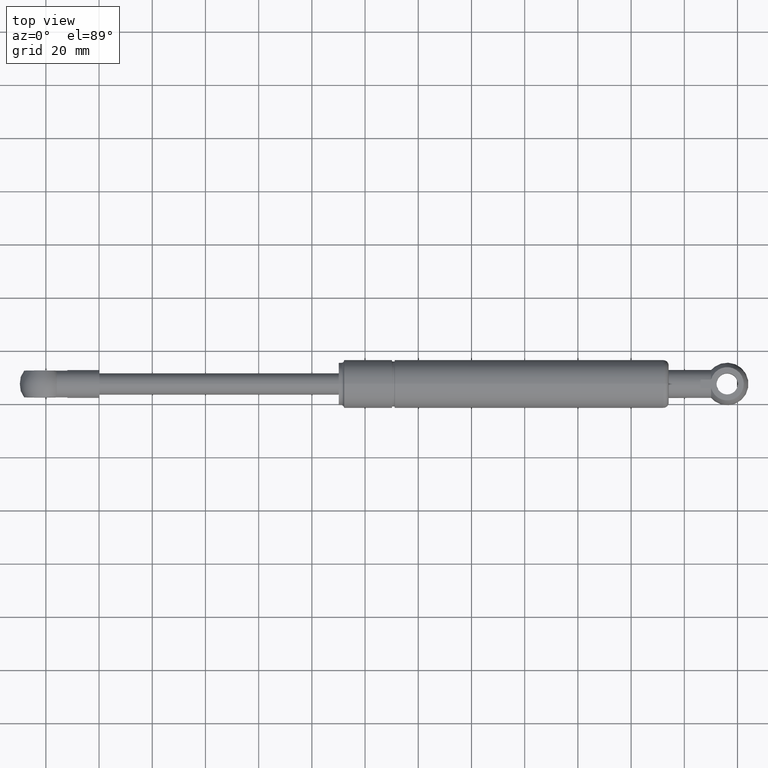
[diagram: clean part render]
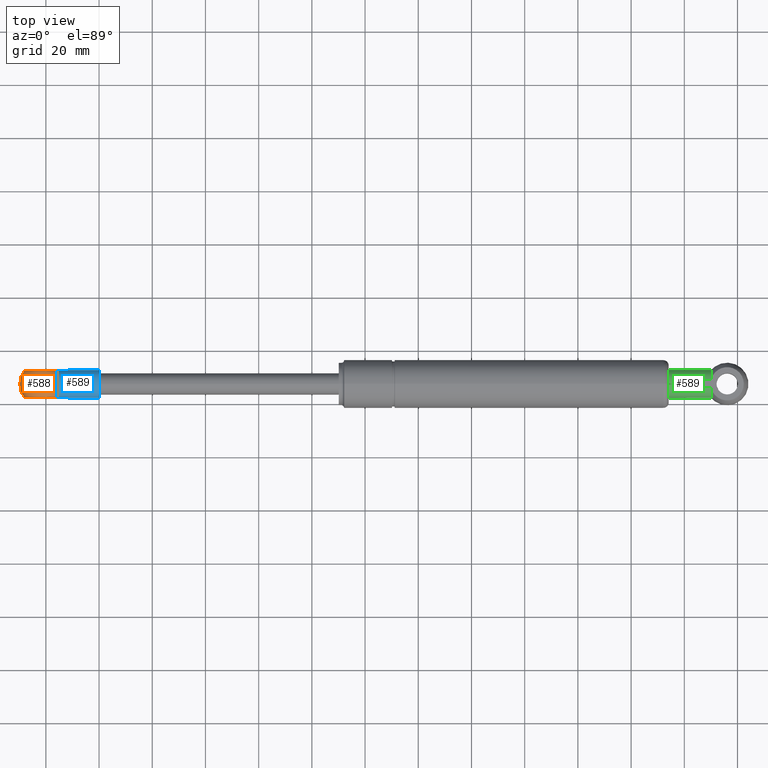
[diagram: same view with three faces highlighted in distinct colors, each labeled with its STEP entity id]
A machine part, top view with three faces highlighted in distinct colors.
Their STEP definitions:

[orange] entity #588 — the highlighted spherical surface has radius 8 mm.
#31=SPHERICAL_SURFACE('',#681,8.);
#162=FACE_OUTER_BOUND('',#243,.T.);
#243=EDGE_LOOP('',(#472,#473,#474,#475));
#283=CIRCLE('',#674,6.2449979983984);
#285=CIRCLE('',#678,6.2449979983984);
#287=CIRCLE('',#682,5.25);
#288=CIRCLE('',#683,5.25);
#328=VERTEX_POINT('',#1044);
#330=VERTEX_POINT('',#1048);
#332=VERTEX_POINT('',#1055);
#334=VERTEX_POINT('',#1059);
#376=EDGE_CURVE('',#328,#330,#283,.T.);
#381=EDGE_CURVE('',#332,#334,#285,.T.);
#383=EDGE_CURVE('',#330,#332,#287,.T.);
#384=EDGE_CURVE('',#334,#328,#288,.T.);
#472=ORIENTED_EDGE('',*,*,#376,.T.);
#473=ORIENTED_EDGE('',*,*,#383,.T.);
#474=ORIENTED_EDGE('',*,*,#381,.T.);
#475=ORIENTED_EDGE('',*,*,#384,.T.);
#588=ADVANCED_FACE('',(#162),#31,.T.);
#674=AXIS2_PLACEMENT_3D('',#1050,#854,#855);
#678=AXIS2_PLACEMENT_3D('',#1061,#865,#866);
#681=AXIS2_PLACEMENT_3D('',#1064,#871,#872);
#682=AXIS2_PLACEMENT_3D('',#1065,#873,#874);
#683=AXIS2_PLACEMENT_3D('',#1066,#875,#876);
#854=DIRECTION('center_axis',(0.,0.,-1.));
#855=DIRECTION('ref_axis',(0.,-1.,0.));
#865=DIRECTION('center_axis',(-1.0285227879424E-16,-1.26876631169479E-32,
1.));
#866=DIRECTION('ref_axis',(0.,1.,1.26876631169479E-32));
#871=DIRECTION('center_axis',(6.12323399573676E-17,0.,1.));
#872=DIRECTION('ref_axis',(1.,0.,0.));
#873=DIRECTION('center_axis',(-1.22464679914735E-16,1.,0.));
#874=DIRECTION('ref_axis',(1.,0.,0.));
#875=DIRECTION('center_axis',(-1.22464679914735E-16,1.,0.));
#876=DIRECTION('ref_axis',(1.,0.,0.));
#1044=CARTESIAN_POINT('',(-1.60078105935822,15.9636517661752,5.));
#1048=CARTESIAN_POINT('',(1.60078105935822,15.9636517661752,5.));
#1050=CARTESIAN_POINT('Origin',(-2.22044604925031E-15,22.,5.));
#1055=CARTESIAN_POINT('',(1.60078105935822,15.9636517661752,-5.));
#1059=CARTESIAN_POINT('',(-1.60078105935822,15.9636517661752,-5.));
#1061=CARTESIAN_POINT('Origin',(-1.70618465527911E-15,22.,-5.));
#1064=CARTESIAN_POINT('Origin',(-2.22044604925031E-15,22.,0.));
#1065=CARTESIAN_POINT('Origin',(-1.95498350381494E-15,15.9636517661752,
0.));
#1066=CARTESIAN_POINT('Origin',(-1.95498350381494E-15,15.9636517661752,
0.));

[blue] entity #589 — the highlighted cylindrical surface (bore or boss wall) has radius 5.25 mm, axis along (1, 0, 0).
#32=LINE('',#1045,#38);
#34=LINE('',#1049,#40);
#35=LINE('',#1056,#41);
#37=LINE('',#1060,#43);
#38=VECTOR('',#851,3.96365176617517);
#40=VECTOR('',#853,3.96365176617517);
#41=VECTOR('',#862,3.96365176617518);
#43=VECTOR('',#864,3.96365176617518);
#76=CYLINDRICAL_SURFACE('',#684,5.25);
#119=FACE_BOUND('',#245,.T.);
#163=FACE_OUTER_BOUND('',#244,.T.);
#244=EDGE_LOOP('',(#476,#477,#478,#479,#480,#481,#482,#483));
#245=EDGE_LOOP('',(#484));
#280=CIRCLE('',#668,5.25);
#284=CIRCLE('',#676,5.25);
#286=CIRCLE('',#680,5.25);
#287=CIRCLE('',#682,5.25);
#288=CIRCLE('',#683,5.25);
#323=VERTEX_POINT('',#999);
#327=VERTEX_POINT('',#1043);
#328=VERTEX_POINT('',#1044);
#329=VERTEX_POINT('',#1046);
#330=VERTEX_POINT('',#1048);
#331=VERTEX_POINT('',#1054);
#332=VERTEX_POINT('',#1055);
#333=VERTEX_POINT('',#1057);
#334=VERTEX_POINT('',#1059);
#369=EDGE_CURVE('',#323,#323,#280,.T.);
#373=EDGE_CURVE('',#327,#328,#32,.T.);
#375=EDGE_CURVE('',#330,#329,#34,.T.);
#377=EDGE_CURVE('',#329,#327,#284,.T.);
#378=EDGE_CURVE('',#331,#332,#35,.T.);
#380=EDGE_CURVE('',#334,#333,#37,.T.);
#382=EDGE_CURVE('',#333,#331,#286,.T.);
#383=EDGE_CURVE('',#330,#332,#287,.T.);
#384=EDGE_CURVE('',#334,#328,#288,.T.);
#476=ORIENTED_EDGE('',*,*,#373,.T.);
#477=ORIENTED_EDGE('',*,*,#384,.F.);
#478=ORIENTED_EDGE('',*,*,#380,.T.);
#479=ORIENTED_EDGE('',*,*,#382,.T.);
#480=ORIENTED_EDGE('',*,*,#378,.T.);
#481=ORIENTED_EDGE('',*,*,#383,.F.);
#482=ORIENTED_EDGE('',*,*,#375,.T.);
#483=ORIENTED_EDGE('',*,*,#377,.T.);
#484=ORIENTED_EDGE('',*,*,#369,.F.);
#589=ADVANCED_FACE('',(#163,#119),#76,.T.);
#668=AXIS2_PLACEMENT_3D('',#1000,#839,#840);
#676=AXIS2_PLACEMENT_3D('',#1052,#858,#859);
#680=AXIS2_PLACEMENT_3D('',#1063,#869,#870);
#682=AXIS2_PLACEMENT_3D('',#1065,#873,#874);
#683=AXIS2_PLACEMENT_3D('',#1066,#875,#876);
#684=AXIS2_PLACEMENT_3D('',#1067,#877,#878);
#839=DIRECTION('center_axis',(1.22464679914735E-16,-1.,0.));
#840=DIRECTION('ref_axis',(1.,1.22464679914735E-16,0.));
#851=DIRECTION('',(-1.22464679914735E-16,1.,0.));
#853=DIRECTION('',(1.22464679914735E-16,-1.,0.));
#858=DIRECTION('center_axis',(1.2335811384724E-16,-1.,0.));
#859=DIRECTION('ref_axis',(1.,1.22464679914735E-16,0.));
#862=DIRECTION('',(-1.22464679914735E-16,1.,0.));
#864=DIRECTION('',(1.22464679914735E-16,-1.,0.));
#869=DIRECTION('center_axis',(1.2335811384724E-16,-1.,0.));
#870=DIRECTION('ref_axis',(1.,1.22464679914735E-16,0.));
#873=DIRECTION('center_axis',(-1.22464679914735E-16,1.,0.));
#874=DIRECTION('ref_axis',(1.,0.,0.));
#875=DIRECTION('center_axis',(-1.22464679914735E-16,1.,0.));
#876=DIRECTION('ref_axis',(1.,0.,0.));
#877=DIRECTION('center_axis',(1.22464679914735E-16,-1.,0.));
#878=DIRECTION('ref_axis',(1.,1.22464679914735E-16,0.));
#999=CARTESIAN_POINT('',(5.25,0.,0.));
#1000=CARTESIAN_POINT('Origin',(7.87373885897476E-32,-6.42939569552361E-16,
0.));
#1043=CARTESIAN_POINT('',(-1.60078105935822,12.,5.));
#1044=CARTESIAN_POINT('',(-1.60078105935822,15.9636517661752,5.));
#1045=CARTESIAN_POINT('',(-1.60078105935822,8.,5.));
#1046=CARTESIAN_POINT('',(1.60078105935822,12.,5.));
#1048=CARTESIAN_POINT('',(1.60078105935822,15.9636517661752,5.));
#1049=CARTESIAN_POINT('',(1.60078105935822,8.,5.));
#1052=CARTESIAN_POINT('Origin',(-1.46957615897682E-15,12.,0.));
#1054=CARTESIAN_POINT('',(1.60078105935822,12.,-5.));
#1055=CARTESIAN_POINT('',(1.60078105935822,15.9636517661752,-5.));
#1056=CARTESIAN_POINT('',(1.60078105935822,8.,-5.));
#1057=CARTESIAN_POINT('',(-1.60078105935822,12.,-5.));
#1059=CARTESIAN_POINT('',(-1.60078105935822,15.9636517661752,-5.));
#1060=CARTESIAN_POINT('',(-1.60078105935822,8.,-5.));
#1063=CARTESIAN_POINT('Origin',(-1.46957615897682E-15,12.,0.));
#1065=CARTESIAN_POINT('Origin',(-1.95498350381494E-15,15.9636517661752,
0.));
#1066=CARTESIAN_POINT('Origin',(-1.95498350381494E-15,15.9636517661752,
0.));
#1067=CARTESIAN_POINT('Origin',(-9.79717439317883E-16,8.,0.));

[green] entity #589 — the highlighted cylindrical surface (bore or boss wall) has radius 5.25 mm, axis along (-1, 0, 0).
#32=LINE('',#1045,#38);
#34=LINE('',#1049,#40);
#35=LINE('',#1056,#41);
#37=LINE('',#1060,#43);
#38=VECTOR('',#851,3.96365176617517);
#40=VECTOR('',#853,3.96365176617517);
#41=VECTOR('',#862,3.96365176617518);
#43=VECTOR('',#864,3.96365176617518);
#76=CYLINDRICAL_SURFACE('',#684,5.25);
#119=FACE_BOUND('',#245,.T.);
#163=FACE_OUTER_BOUND('',#244,.T.);
#244=EDGE_LOOP('',(#476,#477,#478,#479,#480,#481,#482,#483));
#245=EDGE_LOOP('',(#484));
#280=CIRCLE('',#668,5.25);
#284=CIRCLE('',#676,5.25);
#286=CIRCLE('',#680,5.25);
#287=CIRCLE('',#682,5.25);
#288=CIRCLE('',#683,5.25);
#323=VERTEX_POINT('',#999);
#327=VERTEX_POINT('',#1043);
#328=VERTEX_POINT('',#1044);
#329=VERTEX_POINT('',#1046);
#330=VERTEX_POINT('',#1048);
#331=VERTEX_POINT('',#1054);
#332=VERTEX_POINT('',#1055);
#333=VERTEX_POINT('',#1057);
#334=VERTEX_POINT('',#1059);
#369=EDGE_CURVE('',#323,#323,#280,.T.);
#373=EDGE_CURVE('',#327,#328,#32,.T.);
#375=EDGE_CURVE('',#330,#329,#34,.T.);
#377=EDGE_CURVE('',#329,#327,#284,.T.);
#378=EDGE_CURVE('',#331,#332,#35,.T.);
#380=EDGE_CURVE('',#334,#333,#37,.T.);
#382=EDGE_CURVE('',#333,#331,#286,.T.);
#383=EDGE_CURVE('',#330,#332,#287,.T.);
#384=EDGE_CURVE('',#334,#328,#288,.T.);
#476=ORIENTED_EDGE('',*,*,#373,.T.);
#477=ORIENTED_EDGE('',*,*,#384,.F.);
#478=ORIENTED_EDGE('',*,*,#380,.T.);
#479=ORIENTED_EDGE('',*,*,#382,.T.);
#480=ORIENTED_EDGE('',*,*,#378,.T.);
#481=ORIENTED_EDGE('',*,*,#383,.F.);
#482=ORIENTED_EDGE('',*,*,#375,.T.);
#483=ORIENTED_EDGE('',*,*,#377,.T.);
#484=ORIENTED_EDGE('',*,*,#369,.F.);
#589=ADVANCED_FACE('',(#163,#119),#76,.T.);
#668=AXIS2_PLACEMENT_3D('',#1000,#839,#840);
#676=AXIS2_PLACEMENT_3D('',#1052,#858,#859);
#680=AXIS2_PLACEMENT_3D('',#1063,#869,#870);
#682=AXIS2_PLACEMENT_3D('',#1065,#873,#874);
#683=AXIS2_PLACEMENT_3D('',#1066,#875,#876);
#684=AXIS2_PLACEMENT_3D('',#1067,#877,#878);
#839=DIRECTION('center_axis',(1.22464679914735E-16,-1.,0.));
#840=DIRECTION('ref_axis',(1.,1.22464679914735E-16,0.));
#851=DIRECTION('',(-1.22464679914735E-16,1.,0.));
#853=DIRECTION('',(1.22464679914735E-16,-1.,0.));
#858=DIRECTION('center_axis',(1.2335811384724E-16,-1.,0.));
#859=DIRECTION('ref_axis',(1.,1.22464679914735E-16,0.));
#862=DIRECTION('',(-1.22464679914735E-16,1.,0.));
#864=DIRECTION('',(1.22464679914735E-16,-1.,0.));
#869=DIRECTION('center_axis',(1.2335811384724E-16,-1.,0.));
#870=DIRECTION('ref_axis',(1.,1.22464679914735E-16,0.));
#873=DIRECTION('center_axis',(-1.22464679914735E-16,1.,0.));
#874=DIRECTION('ref_axis',(1.,0.,0.));
#875=DIRECTION('center_axis',(-1.22464679914735E-16,1.,0.));
#876=DIRECTION('ref_axis',(1.,0.,0.));
#877=DIRECTION('center_axis',(1.22464679914735E-16,-1.,0.));
#878=DIRECTION('ref_axis',(1.,1.22464679914735E-16,0.));
#999=CARTESIAN_POINT('',(5.25,0.,0.));
#1000=CARTESIAN_POINT('Origin',(7.87373885897476E-32,-6.42939569552361E-16,
0.));
#1043=CARTESIAN_POINT('',(-1.60078105935822,12.,5.));
#1044=CARTESIAN_POINT('',(-1.60078105935822,15.9636517661752,5.));
#1045=CARTESIAN_POINT('',(-1.60078105935822,8.,5.));
#1046=CARTESIAN_POINT('',(1.60078105935822,12.,5.));
#1048=CARTESIAN_POINT('',(1.60078105935822,15.9636517661752,5.));
#1049=CARTESIAN_POINT('',(1.60078105935822,8.,5.));
#1052=CARTESIAN_POINT('Origin',(-1.46957615897682E-15,12.,0.));
#1054=CARTESIAN_POINT('',(1.60078105935822,12.,-5.));
#1055=CARTESIAN_POINT('',(1.60078105935822,15.9636517661752,-5.));
#1056=CARTESIAN_POINT('',(1.60078105935822,8.,-5.));
#1057=CARTESIAN_POINT('',(-1.60078105935822,12.,-5.));
#1059=CARTESIAN_POINT('',(-1.60078105935822,15.9636517661752,-5.));
#1060=CARTESIAN_POINT('',(-1.60078105935822,8.,-5.));
#1063=CARTESIAN_POINT('Origin',(-1.46957615897682E-15,12.,0.));
#1065=CARTESIAN_POINT('Origin',(-1.95498350381494E-15,15.9636517661752,
0.));
#1066=CARTESIAN_POINT('Origin',(-1.95498350381494E-15,15.9636517661752,
0.));
#1067=CARTESIAN_POINT('Origin',(-9.79717439317883E-16,8.,0.));